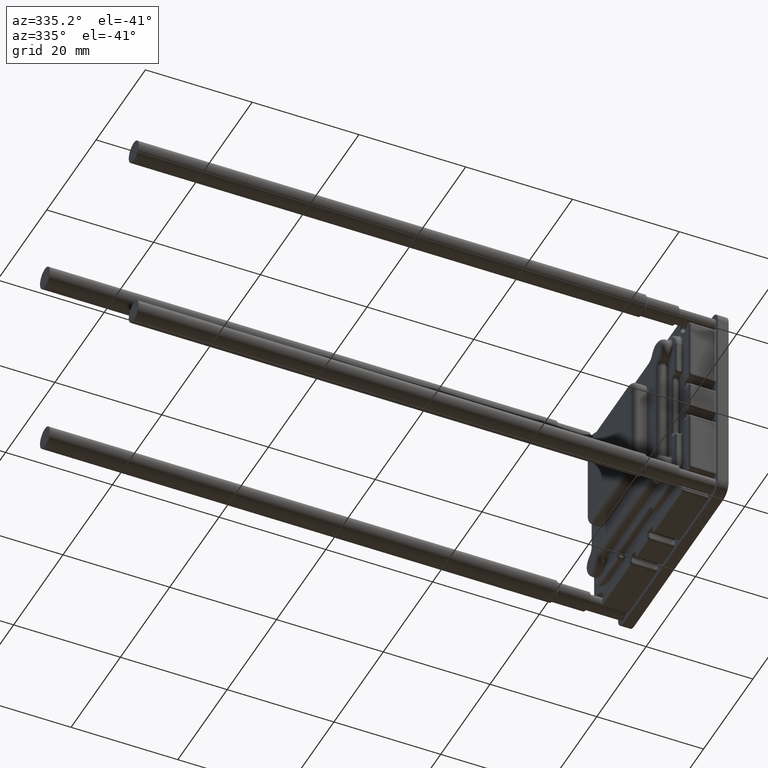
[diagram: clean part render]
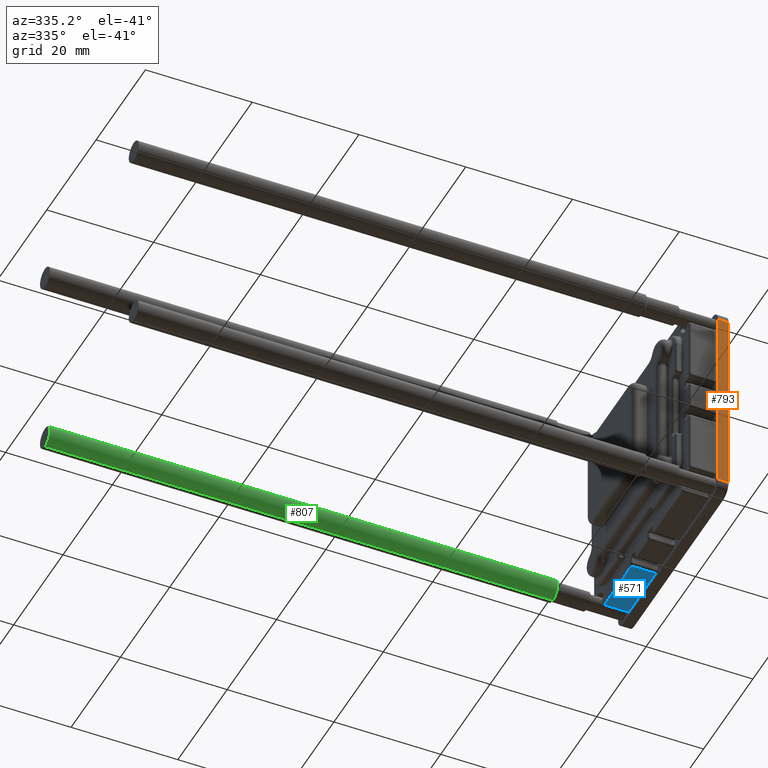
[diagram: same view with three faces highlighted in distinct colors, each labeled with its STEP entity id]
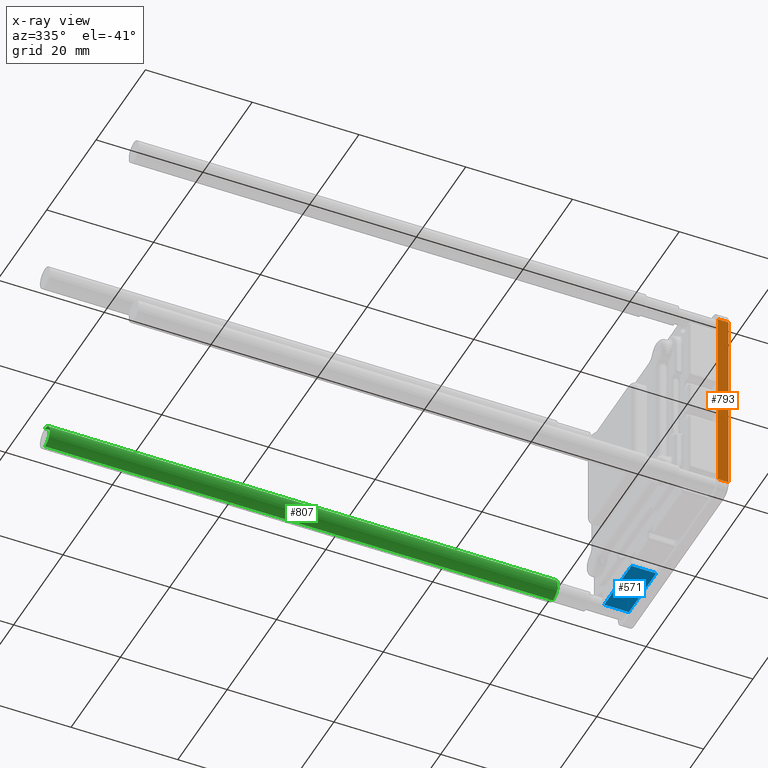
[diagram: x-ray of the same camera — body ghosted, the three highlighted faces saturated]
A machine part, auxiliary view with three faces highlighted in distinct colors.
The next image is the same camera in x-ray (body ghosted, the three faces saturated) — at least one of them is partly hidden behind the body in this view.
Their STEP definitions:

[orange] entity #793 — the highlighted planar face has unit normal (0, -1, 0).
#793=ADVANCED_FACE('',(#1223),#3939,.T.);
#1223=FACE_OUTER_BOUND('',#1673,.F.);
#1673=EDGE_LOOP('',(#3299,#3300,#3301,#3302));
#3299=ORIENTED_EDGE('',*,*,#6252,.F.);
#3300=ORIENTED_EDGE('',*,*,#6244,.F.);
#3301=ORIENTED_EDGE('',*,*,#6256,.T.);
#3302=ORIENTED_EDGE('',*,*,#6237,.T.);
#3939=PLANE('',#8815);
#6237=EDGE_CURVE('',#7377,#7374,#6827,.T.);
#6244=EDGE_CURVE('',#7368,#7367,#6830,.T.);
#6252=EDGE_CURVE('',#7367,#7374,#6836,.T.);
#6256=EDGE_CURVE('',#7368,#7377,#6840,.T.);
#6827=LINE('',#12856,#7275);
#6830=LINE('',#12863,#7278);
#6836=LINE('',#12871,#7284);
#6840=LINE('',#12875,#7288);
#7275=VECTOR('',#10224,2.);
#7278=VECTOR('',#10235,2.);
#7284=VECTOR('',#10245,36.);
#7288=VECTOR('',#10249,36.);
#7367=VERTEX_POINT('',#11466);
#7368=VERTEX_POINT('',#11467);
#7374=VERTEX_POINT('',#11473);
#7377=VERTEX_POINT('',#11476);
#8815=AXIS2_PLACEMENT_3D('',#13333,#11131,#11132);
#10224=DIRECTION('',(1.,0.,0.));
#10235=DIRECTION('',(1.,0.,0.));
#10245=DIRECTION('',(0.,0.,1.));
#10249=DIRECTION('',(0.,0.,1.));
#11131=DIRECTION('',(0.,-1.,0.));
#11132=DIRECTION('',(0.,0.,1.));
#11466=CARTESIAN_POINT('',(76.8649997447655,-220.249995498775,18.0000072097393));
#11467=CARTESIAN_POINT('',(74.8649997447655,-220.249995498775,18.0000072097393));
#11473=CARTESIAN_POINT('',(76.8649997447654,-220.249995498775,54.0000072097393));
#11476=CARTESIAN_POINT('',(74.8649997447654,-220.249995498775,54.0000072097393));
#12856=CARTESIAN_POINT('',(74.8649997447654,-220.249995498774,54.0000072097393));
#12863=CARTESIAN_POINT('',(74.8649997447655,-220.249995498775,18.0000072097393));
#12871=CARTESIAN_POINT('',(76.8649997447654,-220.249995498775,18.0000072097393));
#12875=CARTESIAN_POINT('',(74.8649997447654,-220.249995498775,18.0000072097393));
#13333=CARTESIAN_POINT('',(77.2699997447655,-220.249995498775,15.3450072097393));

[blue] entity #571 — the highlighted planar face has unit normal (0, 0, -1).
#571=ADVANCED_FACE('',(#1001),#3890,.T.);
#1001=FACE_OUTER_BOUND('',#1444,.F.);
#1444=EDGE_LOOP('',(#2219,#2220,#2221,#2222));
#2219=ORIENTED_EDGE('',*,*,#5810,.F.);
#2220=ORIENTED_EDGE('',*,*,#5628,.T.);
#2221=ORIENTED_EDGE('',*,*,#5811,.T.);
#2222=ORIENTED_EDGE('',*,*,#5407,.T.);
#3890=PLANE('',#8593);
#5407=EDGE_CURVE('',#7923,#7922,#6427,.T.);
#5628=EDGE_CURVE('',#7702,#7703,#6527,.T.);
#5810=EDGE_CURVE('',#7702,#7922,#6646,.T.);
#5811=EDGE_CURVE('',#7703,#7923,#6647,.T.);
#6427=LINE('',#12026,#6875);
#6527=LINE('',#12247,#6975);
#6646=LINE('',#12429,#7094);
#6647=LINE('',#12430,#7095);
#6875=VECTOR('',#8964,11.0713974451064);
#6975=VECTOR('',#9306,11.0713974375404);
#7094=VECTOR('',#9551,4.59999999999998);
#7095=VECTOR('',#9552,4.59999999999997);
#7702=VERTEX_POINT('',#11801);
#7703=VERTEX_POINT('',#11802);
#7922=VERTEX_POINT('',#12021);
#7923=VERTEX_POINT('',#12022);
#8593=AXIS2_PLACEMENT_3D('',#13111,#10687,#10688);
#8964=DIRECTION('',(0.,-1.,0.));
#9306=DIRECTION('',(0.,1.,0.));
#9551=DIRECTION('',(-1.,0.,0.));
#9552=DIRECTION('',(-1.,0.,0.));
#10687=DIRECTION('',(0.,1.51321209508928E-08,-1.));
#10688=DIRECTION('',(0.,-1.,-1.51321214529913E-08));
#11801=CARTESIAN_POINT('',(74.8649997447654,-195.1499956227,16.5500137097837));
#11802=CARTESIAN_POINT('',(74.8649997447654,-184.078598182637,16.5500138214728));
#12021=CARTESIAN_POINT('',(70.2649997447654,-195.149995625222,16.5500136958226));
#12022=CARTESIAN_POINT('',(70.2649997447654,-184.078598182952,16.5500138214729));
#12026=CARTESIAN_POINT('',(70.2649997447654,-184.078598180115,16.5500138214729));
#12247=CARTESIAN_POINT('',(74.8649997447655,-195.149995617655,16.5500138214728));
#12429=CARTESIAN_POINT('',(74.8649997447654,-195.149995625222,16.5500136539391));
#12430=CARTESIAN_POINT('',(74.8649997447654,-184.078598180115,16.5500138214728));
#13111=CARTESIAN_POINT('',(74.9757137191408,-183.96788420574,16.5500138231482));

[green] entity #807 — the highlighted cylindrical surface (edge-blend (fillet) strip) has radius 2 mm, axis along (-1, 0, 0).
#442=CYLINDRICAL_SURFACE('',#8829,2.00000000000006);
#807=ADVANCED_FACE('',(#1237),#442,.T.);
#1237=FACE_OUTER_BOUND('',#1688,.F.);
#1688=EDGE_LOOP('',(#3355,#3356,#3357,#3358));
#3355=ORIENTED_EDGE('',*,*,#6269,.T.);
#3356=ORIENTED_EDGE('',*,*,#6274,.F.);
#3357=ORIENTED_EDGE('',*,*,#6270,.F.);
#3358=ORIENTED_EDGE('',*,*,#6275,.T.);
#5278=CIRCLE('',#8399,2.00000000000006);
#5279=CIRCLE('',#8400,2.00000000000006);
#6269=EDGE_CURVE('',#7353,#7355,#6848,.T.);
#6270=EDGE_CURVE('',#7352,#7354,#6849,.T.);
#6274=EDGE_CURVE('',#7354,#7355,#5278,.T.);
#6275=EDGE_CURVE('',#7352,#7353,#5279,.T.);
#6848=LINE('',#12888,#7296);
#6849=LINE('',#12889,#7297);
#7296=VECTOR('',#10267,95.1625749117952);
#7297=VECTOR('',#10268,95.1625749117952);
#7352=VERTEX_POINT('',#11451);
#7353=VERTEX_POINT('',#11452);
#7354=VERTEX_POINT('',#11453);
#7355=VERTEX_POINT('',#11454);
#8399=AXIS2_PLACEMENT_3D('',#12893,#10275,#10276);
#8400=AXIS2_PLACEMENT_3D('',#12894,#10277,#10278);
#8829=AXIS2_PLACEMENT_3D('',#13347,#11159,#11160);
#10267=DIRECTION('',(1.,0.,0.));
#10268=DIRECTION('',(1.,0.,0.));
#10275=DIRECTION('',(-1.,0.,0.));
#10276=DIRECTION('',(0.,0.,-1.));
#10277=DIRECTION('',(-1.,0.,0.));
#10278=DIRECTION('',(0.,0.,-1.));
#11159=DIRECTION('',(-1.,0.,0.));
#11160=DIRECTION('',(0.,0.,-1.));
#11451=CARTESIAN_POINT('',(-33.54757516703,-181.999995498775,16.0000072097392));
#11452=CARTESIAN_POINT('',(-33.54757516703,-181.999995498775,20.0000072097393));
#11453=CARTESIAN_POINT('',(61.6149997447652,-181.999995498775,16.0000072097392));
#11454=CARTESIAN_POINT('',(61.6149997447652,-181.999995498775,20.0000072097393));
#12888=CARTESIAN_POINT('',(-33.54757516703,-181.999995498775,20.0000072097393));
#12889=CARTESIAN_POINT('',(-33.54757516703,-181.999995498775,16.0000072097392));
#12893=CARTESIAN_POINT('',(61.6149997447652,-181.999995498775,18.0000072097393));
#12894=CARTESIAN_POINT('',(-33.54757516703,-181.999995498775,18.0000072097392));
#13347=CARTESIAN_POINT('',(-33.54757516703,-181.999995498775,18.0000072097392));